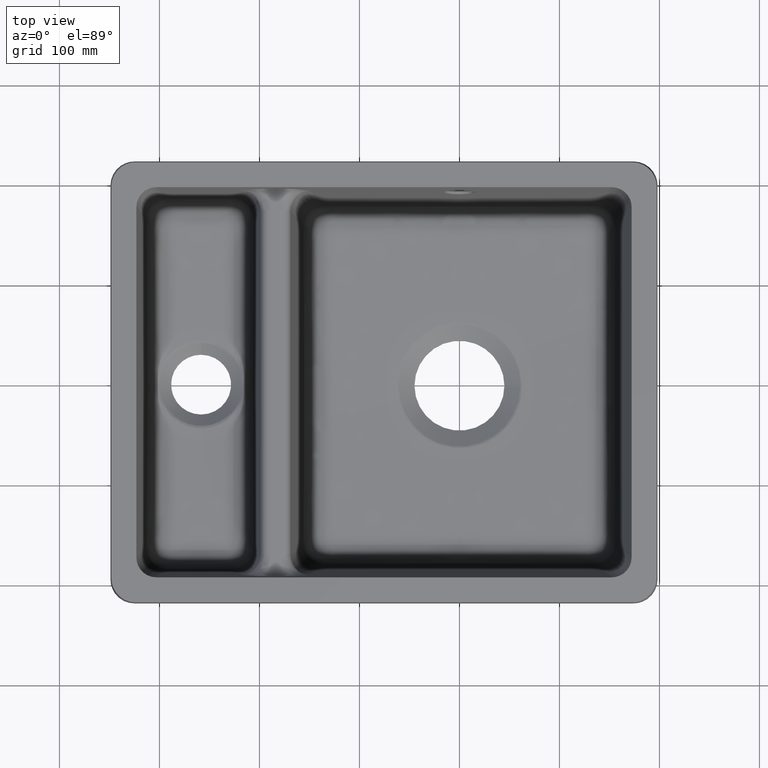
[diagram: clean part render]
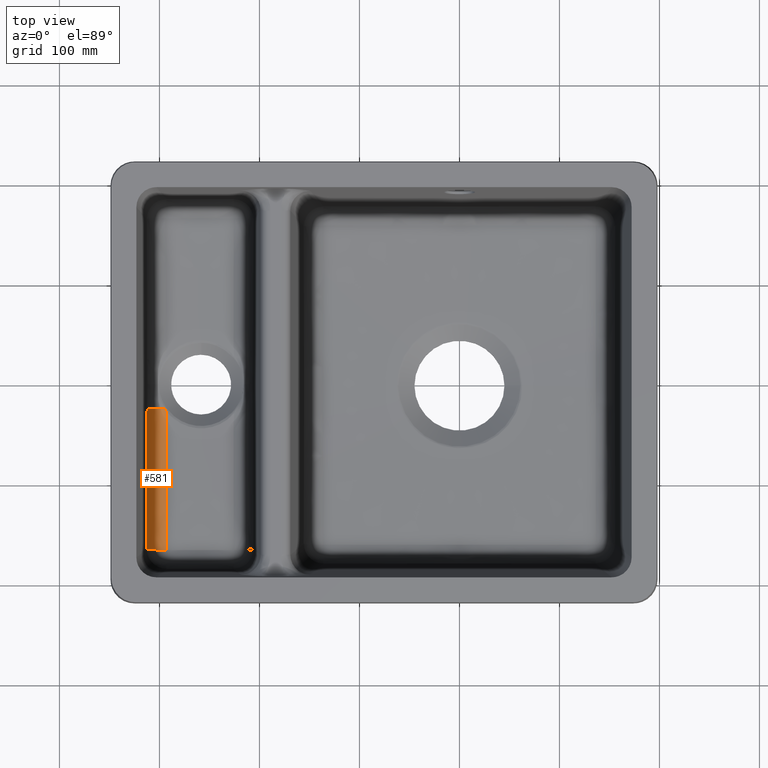
[diagram: same view with one face highlighted and labeled with its STEP entity id]
A machine part, top view. The second image highlights one B-rep face of the part: STEP entity #581.
In plain terms, the highlighted face is a freeform B-spline surface patch.
Its self-contained STEP definition (entity closure, byte-faithful):
#125=(
BOUNDED_SURFACE()
B_SPLINE_SURFACE(3,2,((#7878,#7879,#7880),(#7881,#7882,#7883),(#7884,#7885,
#7886),(#7887,#7888,#7889),(#7890,#7891,#7892),(#7893,#7894,#7895),(#7896,
#7897,#7898),(#7899,#7900,#7901)),.UNSPECIFIED.,.F.,.F.,.F.)
B_SPLINE_SURFACE_WITH_KNOTS((4,2,2,4),(3,3),(0.,0.5,0.75,1.),(0.,1.),
 .UNSPECIFIED.)
GEOMETRIC_REPRESENTATION_ITEM()
RATIONAL_B_SPLINE_SURFACE(((1.,0.746104005475301,1.),(1.,0.746527538970767,
1.),(1.,0.747001951568925,1.),(1.,0.748608014456038,1.),(1.,0.749291800073389,
1.),(1.,0.751415621870391,1.),(1.,0.752931310722518,1.),(1.,0.754912663048427,
1.)))
REPRESENTATION_ITEM('')
SURFACE()
);
#288=FACE_OUTER_BOUND('',#853,.T.);
#447=CIRCLE('',#3088,19.9999999999992);
#581=ADVANCED_FACE('',(#288),#125,.T.);
#853=EDGE_LOOP('',(#1658,#1659,#1660,#1661,#1662));
#1046=B_SPLINE_CURVE_WITH_KNOTS('',3,(#7591,#7592,#7593,#7594,#7595,#7596,
#7597,#7598,#7599,#7600,#7601,#7602),.UNSPECIFIED.,.F.,.F.,(4,2,2,2,2,4),
(0.,0.0625000000000044,0.125000000000009,0.250000000000018,0.5,1.),
 .UNSPECIFIED.);
#1052=B_SPLINE_CURVE_WITH_KNOTS('',3,(#7663,#7664,#7665,#7666,#7667,#7668,
#7669,#7670,#7671,#7672,#7673,#7674,#7675,#7676,#7677,#7678,#7679,#7680,
#7681,#7682,#7683,#7684,#7685,#7686,#7687,#7688,#7689,#7690,#7691,#7692,
#7693,#7694,#7695,#7696,#7697,#7698,#7699,#7700,#7701,#7702,#7703,#7704,
#7705,#7706,#7707,#7708,#7709,#7710,#7711,#7712,#7713,#7714,#7715,#7716,
#7717,#7718,#7719,#7720,#7721,#7722,#7723),.UNSPECIFIED.,.F.,.F.,(4,2,2,
2,2,2,2,2,2,2,2,2,2,2,2,2,2,2,2,2,2,2,2,2,2,2,2,1,2,2,4),(0.,0.0156249999999978,
0.0234374999999966,0.0312499999999955,0.0468749999999933,0.0624999999999911,
0.0781249999999889,0.0937499999999867,0.109374999999984,0.124999999999982,
0.156249999999978,0.171874999999975,0.187499999999973,0.218749999999968,
0.234374999999962,0.249999999999957,0.312499999999941,0.343749999999934,
0.359374999999933,0.374999999999931,0.437499999999939,0.46874999999994,
0.484374999999943,0.499999999999946,0.624999999999956,0.687499999999962,
0.718749999999964,0.734374999999965,0.742187499999966,0.749999999999967,
1.),.UNSPECIFIED.);
#1054=B_SPLINE_CURVE_WITH_KNOTS('',3,(#7789,#7790,#7791,#7792,#7793,#7794,
#7795,#7796,#7797,#7798,#7799,#7800,#7801,#7802,#7803,#7804,#7805,#7806,
#7807,#7808,#7809,#7810,#7811,#7812,#7813,#7814,#7815,#7816,#7817,#7818,
#7819,#7820,#7821),.UNSPECIFIED.,.F.,.F.,(4,2,2,2,2,1,1,2,2,2,2,2,1,1,1,
2,2,2,4),(0.,0.125000000000011,0.187500000000016,0.218750000000019,0.23437500000002,
0.242187500000021,0.246093750000021,0.248046875000021,0.250000000000021,
0.375000000000028,0.437500000000031,0.468750000000033,0.484375000000033,
0.492187500000034,0.496093750000034,0.498046875000034,0.500000000000034,
0.750000000000017,1.),.UNSPECIFIED.);
#1055=B_SPLINE_CURVE_WITH_KNOTS('',3,(#7824,#7825,#7826,#7827,#7828,#7829,
#7830,#7831,#7832,#7833,#7834,#7835,#7836,#7837,#7838,#7839,#7840,#7841,
#7842,#7843,#7844,#7845,#7846,#7847,#7848,#7849,#7850,#7851,#7852,#7853,
#7854,#7855,#7856,#7857,#7858,#7859,#7860,#7861,#7862,#7863,#7864,#7865,
#7866,#7867,#7868,#7869,#7870,#7871,#7872,#7873,#7874,#7875,#7876,#7877),
 .UNSPECIFIED.,.F.,.F.,(4,1,1,1,1,1,2,2,1,1,1,1,1,1,2,2,1,1,1,1,2,2,1,1,
1,1,2,2,1,1,1,1,2,2,1,1,1,2,2,4),(0.,0.12500000000001,0.187500000000016,
0.218750000000019,0.23437500000002,0.24218750000002,0.24609375000002,0.25000000000002,
0.375000000000019,0.437500000000018,0.468750000000018,0.484375000000018,
0.492187500000018,0.496093750000018,0.498046875000018,0.500000000000018,
0.531250000000017,0.546875000000016,0.554687500000016,0.558593750000016,
0.560546875000015,0.562500000000015,0.593750000000015,0.609375000000015,
0.617187500000015,0.621093750000015,0.623046875000014,0.625000000000014,
0.687500000000013,0.718750000000012,0.734375000000012,0.742187500000012,
0.746093750000012,0.750000000000012,0.812500000000009,0.843750000000007,
0.859375000000006,0.867187500000006,0.875000000000006,1.),.UNSPECIFIED.);
#1658=ORIENTED_EDGE('',*,*,#2585,.F.);
#1659=ORIENTED_EDGE('',*,*,#2575,.T.);
#1660=ORIENTED_EDGE('',*,*,#2586,.T.);
#1661=ORIENTED_EDGE('',*,*,#2587,.F.);
#1662=ORIENTED_EDGE('',*,*,#2581,.F.);
#2208=VERTEX_POINT('',#7484);
#2211=VERTEX_POINT('',#7526);
#2214=VERTEX_POINT('',#7635);
#2216=VERTEX_POINT('',#7724);
#2218=VERTEX_POINT('',#7823);
#2575=EDGE_CURVE('',#2211,#2208,#1046,.T.);
#2581=EDGE_CURVE('',#2214,#2216,#1052,.T.);
#2585=EDGE_CURVE('',#2211,#2214,#1054,.T.);
#2586=EDGE_CURVE('',#2208,#2218,#447,.T.);
#2587=EDGE_CURVE('',#2216,#2218,#1055,.T.);
#3088=AXIS2_PLACEMENT_3D('',#7822,#3608,#3609);
#3608=DIRECTION('',(0.00266789837881062,0.999674230677222,-0.0253833575033934));
#3609=DIRECTION('',(0.,0.025383447839206,0.999677788377733));
#7484=CARTESIAN_POINT('',(-294.614486643253,-24.7179464307268,-120.028523984698));
#7526=CARTESIAN_POINT('',(-293.11186946766,-27.0577078308736,-120.076575875401));
#7591=CARTESIAN_POINT('',(-293.112043554677,-27.0577121708611,-120.076756417479));
#7592=CARTESIAN_POINT('',(-293.112045420168,-27.0574346108325,-120.076763755321));
#7593=CARTESIAN_POINT('',(-293.175092334555,-26.9604266979551,-120.077100518656));
#7594=CARTESIAN_POINT('',(-293.238032358091,-26.8634597566826,-120.077208524835));
#7595=CARTESIAN_POINT('',(-293.269764771186,-26.8145359317293,-120.077185814916));
#7596=CARTESIAN_POINT('',(-293.363931205429,-26.6692468039538,-120.076890446204));
#7597=CARTESIAN_POINT('',(-293.42762127888,-26.5708332663541,-120.076380269229));
#7598=CARTESIAN_POINT('',(-293.614888306543,-26.2810368951327,-120.073976307663));
#7599=CARTESIAN_POINT('',(-293.743234001911,-26.0818187651981,-120.071072591969));
#7600=CARTESIAN_POINT('',(-294.113351948149,-25.5055583800813,-120.059145704722));
#7601=CARTESIAN_POINT('',(-294.362718553959,-25.1149649587738,-120.046398802244));
#7602=CARTESIAN_POINT('',(-294.614486731181,-24.7179464302455,-120.028523974988));
#7635=CARTESIAN_POINT('',(-293.178436984624,-165.904003299702,-114.598552431371));
#7663=CARTESIAN_POINT('',(-293.178436984624,-165.904003299702,-114.598552431371));
#7664=CARTESIAN_POINT('',(-293.314494884045,-165.903356555184,-114.597359486233));
#7665=CARTESIAN_POINT('',(-293.448328554223,-165.902641847214,-114.594917636681));
#7666=CARTESIAN_POINT('',(-293.670888709215,-165.901850384969,-114.588293226004));
#7667=CARTESIAN_POINT('',(-293.74847030762,-165.901452463245,-114.585579862308));
#7668=CARTESIAN_POINT('',(-293.912095136497,-165.900193116763,-114.578822070729));
#7669=CARTESIAN_POINT('',(-294.028015377867,-165.899102429889,-114.573153992517));
#7670=CARTESIAN_POINT('',(-294.209909761616,-165.89784874697,-114.563275272421));
#7671=CARTESIAN_POINT('',(-294.34574775076,-165.897615073214,-114.554782391739));
#7672=CARTESIAN_POINT('',(-294.648263035517,-165.895310837444,-114.532140321839));
#7673=CARTESIAN_POINT('',(-294.869519733041,-165.892726307697,-114.512521188136));
#7674=CARTESIAN_POINT('',(-295.123676026935,-165.890486974115,-114.487082853851));
#7675=CARTESIAN_POINT('',(-295.262555028833,-165.889402892481,-114.471957584911));
#7676=CARTESIAN_POINT('',(-295.563900002479,-165.886489674113,-114.435407118279));
#7677=CARTESIAN_POINT('',(-295.768929892991,-165.884200335939,-114.407754130508));
#7678=CARTESIAN_POINT('',(-296.031885350587,-165.881368245081,-114.36928685492));
#7679=CARTESIAN_POINT('',(-296.172516196811,-165.879860784225,-114.347381068779));
#7680=CARTESIAN_POINT('',(-296.471875744839,-165.876364397547,-114.297043654215));
#7681=CARTESIAN_POINT('',(-296.676648000208,-165.873787525139,-114.259720315126));
#7682=CARTESIAN_POINT('',(-297.041310495675,-165.869132277934,-114.189301043898));
#7683=CARTESIAN_POINT('',(-297.311023043019,-165.8657705402,-114.132585486346));
#7684=CARTESIAN_POINT('',(-297.754148164658,-165.859301237779,-114.027863336172));
#7685=CARTESIAN_POINT('',(-297.908273666902,-165.856923858907,-113.989670995102));
#7686=CARTESIAN_POINT('',(-298.229023756122,-165.851756284355,-113.905767012544));
#7687=CARTESIAN_POINT('',(-298.442375182817,-165.848177322876,-113.84652912947));
#7688=CARTESIAN_POINT('',(-298.820198468794,-165.84179916722,-113.73715971419));
#7689=CARTESIAN_POINT('',(-299.090511682122,-165.837086466495,-113.653574561606));
#7690=CARTESIAN_POINT('',(-299.522100710746,-165.828944245401,-113.508544612649));
#7691=CARTESIAN_POINT('',(-299.670311538643,-165.82605597047,-113.45692122124));
#7692=CARTESIAN_POINT('',(-299.975104688057,-165.819923076224,-113.34645421743));
#7693=CARTESIAN_POINT('',(-300.17846654552,-165.815685583481,-113.269316075007));
#7694=CARTESIAN_POINT('',(-300.747472212353,-165.803608515926,-113.046790181274));
#7695=CARTESIAN_POINT('',(-301.251476674903,-165.792421578695,-112.830702068893));
#7696=CARTESIAN_POINT('',(-302.069378864799,-165.771632128332,-112.43059906117));
#7697=CARTESIAN_POINT('',(-302.35227598158,-165.764053486156,-112.284539664018));
#7698=CARTESIAN_POINT('',(-302.790064713422,-165.751671641082,-112.043845290968));
#7699=CARTESIAN_POINT('',(-302.938230719551,-165.747376592384,-111.960011833466));
#7700=CARTESIAN_POINT('',(-303.238658692707,-165.738458639322,-111.784702745701));
#7701=CARTESIAN_POINT('',(-303.434462668967,-165.732485645641,-111.666238421789));
#7702=CARTESIAN_POINT('',(-303.987268613459,-165.715344927877,-111.323592714281));
#7703=CARTESIAN_POINT('',(-304.455818823229,-165.699891338568,-111.009420860257));
#7704=CARTESIAN_POINT('',(-305.186330280183,-165.673372825335,-110.466165115131));
#7705=CARTESIAN_POINT('',(-305.434411466875,-165.66398258431,-110.273075631819));
#7706=CARTESIAN_POINT('',(-305.811569330437,-165.649032445107,-109.963947291946));
#7707=CARTESIAN_POINT('',(-305.938125338326,-165.64390530647,-109.857655737816));
#7708=CARTESIAN_POINT('',(-306.192573326131,-165.63336156111,-109.638332163376));
#7709=CARTESIAN_POINT('',(-306.36083523707,-165.626196324796,-109.488659290539));
#7710=CARTESIAN_POINT('',(-307.152926181561,-165.591886784406,-108.769736644875));
#7711=CARTESIAN_POINT('',(-307.910630363229,-165.555706840389,-107.991741348382));
#7712=CARTESIAN_POINT('',(-309.042900264554,-165.489665552402,-106.566429750773));
#7713=CARTESIAN_POINT('',(-309.419237466946,-165.465722857297,-106.048342115632));
#7714=CARTESIAN_POINT('',(-309.967999692366,-165.426869623786,-105.202045827512));
#7715=CARTESIAN_POINT('',(-310.148271088839,-165.413431529355,-104.908435403876));
#7716=CARTESIAN_POINT('',(-310.412712314206,-165.392565734765,-104.450343406642));
#7717=CARTESIAN_POINT('',(-310.543439100884,-165.381955977566,-104.216880449442));
#7718=CARTESIAN_POINT('',(-310.671530628708,-165.371087860389,-103.976736449614));
#7719=CARTESIAN_POINT('',(-310.756294103533,-165.363786007968,-103.815151196972));
#7720=CARTESIAN_POINT('',(-310.814561844477,-165.358667623845,-103.701666254586));
#7721=CARTESIAN_POINT('',(-311.656944668952,-165.283835635971,-102.040565250747));
#7722=CARTESIAN_POINT('',(-312.571122276393,-165.181268471018,-99.7385079655499));
#7723=CARTESIAN_POINT('',(-312.889624969351,-165.050229414598,-96.7081572650869));
#7724=CARTESIAN_POINT('',(-312.889624969351,-165.050229414598,-96.7081572650869));
#7789=CARTESIAN_POINT('',(-293.111869467661,-27.0577078308736,-120.076575875401));
#7790=CARTESIAN_POINT('',(-293.079930757639,-31.7162990980656,-119.9527491934));
#7791=CARTESIAN_POINT('',(-293.091275360381,-36.8829237434324,-119.793449526508));
#7792=CARTESIAN_POINT('',(-293.056960997458,-45.5391778414894,-119.501290548834));
#7793=CARTESIAN_POINT('',(-293.039014752272,-48.5735397132276,-119.39503597672));
#7794=CARTESIAN_POINT('',(-293.010211036715,-53.3533532645934,-119.222351749215));
#7795=CARTESIAN_POINT('',(-293.000470843587,-54.9846096399037,-119.162573278491));
#7796=CARTESIAN_POINT('',(-292.98825211294,-57.4886673366233,-119.069579980071));
#7797=CARTESIAN_POINT('',(-292.984589209756,-58.3328799108964,-119.038027948542));
#7798=CARTESIAN_POINT('',(-292.98013814275,-59.6134963292064,-118.989868503166));
#7799=CARTESIAN_POINT('',(-292.978174511305,-60.2573787737025,-118.965580930957));
#7800=CARTESIAN_POINT('',(-292.976447050878,-61.0148300110519,-118.936881693385));
#7801=CARTESIAN_POINT('',(-292.975839441902,-61.3407922650348,-118.924504076569));
#7802=CARTESIAN_POINT('',(-292.975465217495,-61.5583982675113,-118.916235011232));
#7803=CARTESIAN_POINT('',(-292.975245151387,-61.7012739982752,-118.910800840808));
#7804=CARTESIAN_POINT('',(-292.968276880756,-66.5877800193264,-118.724843894095));
#7805=CARTESIAN_POINT('',(-292.976345275121,-71.8795235138219,-118.517967605667));
#7806=CARTESIAN_POINT('',(-292.979109653722,-80.5547978435702,-118.171982846299));
#7807=CARTESIAN_POINT('',(-292.979131709588,-83.5692397800833,-118.050709538721));
#7808=CARTESIAN_POINT('',(-292.979852426618,-88.2753727455573,-117.859881995673));
#7809=CARTESIAN_POINT('',(-292.980249376387,-89.8748204717321,-117.794786551043));
#7810=CARTESIAN_POINT('',(-292.981713462934,-92.320092316994,-117.694913988678));
#7811=CARTESIAN_POINT('',(-292.982666619359,-93.5542527866399,-117.644420358641));
#7812=CARTESIAN_POINT('',(-292.984345847878,-95.0142687081886,-117.5845357631));
#7813=CARTESIAN_POINT('',(-292.985352902692,-95.7493161278522,-117.554349625206));
#7814=CARTESIAN_POINT('',(-292.985823198202,-96.0654162164264,-117.54136045751));
#7815=CARTESIAN_POINT('',(-292.986145650453,-96.2763895428683,-117.532689400946));
#7816=CARTESIAN_POINT('',(-292.98637024809,-96.418567337745,-117.52684437746));
#7817=CARTESIAN_POINT('',(-293.00074080023,-105.339617238689,-117.160039297715));
#7818=CARTESIAN_POINT('',(-293.056794393002,-115.541799019332,-116.734271108303));
#7819=CARTESIAN_POINT('',(-293.120721354314,-138.678146298758,-115.759121609684));
#7820=CARTESIAN_POINT('',(-293.128744710384,-151.610739063999,-115.209740300476));
#7821=CARTESIAN_POINT('',(-293.178436984624,-165.904003299702,-114.598552431371));
#7822=CARTESIAN_POINT('',(-292.417091066284,-24.219211563782,-100.155861450181));
#7823=CARTESIAN_POINT('',(-312.307528973452,-24.2192114896577,-102.246430717416));
#7824=CARTESIAN_POINT('',(-312.889624969352,-165.050229414598,-96.708157265087));
#7825=CARTESIAN_POINT('',(-312.857884640401,-157.989410067799,-97.0101463226165));
#7826=CARTESIAN_POINT('',(-312.814393384559,-148.293374861836,-97.4239379812753));
#7827=CARTESIAN_POINT('',(-312.770862251845,-138.547922963122,-97.8381090430155));
#7828=CARTESIAN_POINT('',(-312.750898851931,-134.066844307493,-98.0280481055451));
#7829=CARTESIAN_POINT('',(-312.741367693585,-131.92421680311,-98.1187310197248));
#7830=CARTESIAN_POINT('',(-312.736714749814,-130.877381006777,-98.1630008225433));
#7831=CARTESIAN_POINT('',(-312.734744767213,-130.433982370318,-98.1817439549789));
#7832=CARTESIAN_POINT('',(-312.733436809069,-130.139548896291,-98.1941883454468));
#7833=CARTESIAN_POINT('',(-312.733025748933,-130.047010043129,-98.1980993213998));
#7834=CARTESIAN_POINT('',(-312.703693612443,-123.442185593392,-98.4771759581827));
#7835=CARTESIAN_POINT('',(-312.66305895534,-114.238100591003,-98.863788895331));
#7836=CARTESIAN_POINT('',(-312.619204825613,-104.205133084879,-99.2810330683846));
#7837=CARTESIAN_POINT('',(-312.598166003305,-99.3649322476502,-99.4812040915065));
#7838=CARTESIAN_POINT('',(-312.58786865279,-96.9889025579938,-99.5791768372163));
#7839=CARTESIAN_POINT('',(-312.582775492693,-95.8119053954052,-99.6276350186083));
#7840=CARTESIAN_POINT('',(-312.580242791434,-95.2261612346706,-99.6517320614387));
#7841=CARTESIAN_POINT('',(-312.579160322064,-94.9757182559045,-99.6620310695375));
#7842=CARTESIAN_POINT('',(-312.578439336711,-94.8088874329441,-99.6688907869433));
#7843=CARTESIAN_POINT('',(-312.57788168545,-94.67982811708,-99.6741964842834));
#7844=CARTESIAN_POINT('',(-312.575121858727,-94.0410571499809,-99.7004544815605));
#7845=CARTESIAN_POINT('',(-312.568404586121,-92.4899921962003,-99.7643650612653));
#7846=CARTESIAN_POINT('',(-312.555630936457,-89.544192784036,-99.8858982195824));
#7847=CARTESIAN_POINT('',(-312.548009903719,-87.7872371697654,-99.958407502573));
#7848=CARTESIAN_POINT('',(-312.543890835373,-86.8377453855831,-99.9975978200264));
#7849=CARTESIAN_POINT('',(-312.542059402087,-86.4156030544234,-100.015022743783));
#7850=CARTESIAN_POINT('',(-312.540823753612,-86.1307932156956,-100.026779153714));
#7851=CARTESIAN_POINT('',(-312.540056171666,-85.9538736513032,-100.034082208098));
#7852=CARTESIAN_POINT('',(-312.531724370412,-84.03350772976,-100.113354001782));
#7853=CARTESIAN_POINT('',(-312.521089290239,-81.577782123343,-100.214540030553));
#7854=CARTESIAN_POINT('',(-312.510654756555,-79.159682557851,-100.313817986932));
#7855=CARTESIAN_POINT('',(-312.505930754676,-78.0623611856037,-100.358763862492));
#7856=CARTESIAN_POINT('',(-312.503692069977,-77.5416326021048,-100.380063524615));
#7857=CARTESIAN_POINT('',(-312.502759058586,-77.324448659739,-100.388940535026));
#7858=CARTESIAN_POINT('',(-312.502142923194,-77.1809894649535,-100.394802671698));
#7859=CARTESIAN_POINT('',(-312.501988280103,-77.1449827369579,-100.396274002425));
#7860=CARTESIAN_POINT('',(-312.487049708166,-73.6648912890813,-100.538405020262));
#7861=CARTESIAN_POINT('',(-312.467005845794,-68.9334540726148,-100.729109631942));
#7862=CARTESIAN_POINT('',(-312.446570036382,-63.9918434525157,-100.923543370606));
#7863=CARTESIAN_POINT('',(-312.437089305848,-61.6656380089107,-101.013746496196));
#7864=CARTESIAN_POINT('',(-312.432533234124,-60.5386852537194,-101.057094623056));
#7865=CARTESIAN_POINT('',(-312.43062012343,-60.0634519229112,-101.075296655439));
#7866=CARTESIAN_POINT('',(-312.429353492184,-59.7483511293539,-101.087347846745));
#7867=CARTESIAN_POINT('',(-312.4288930361,-59.6336968104484,-101.09172879374));
#7868=CARTESIAN_POINT('',(-312.415411843354,-56.270003129396,-101.219993774811));
#7869=CARTESIAN_POINT('',(-312.397624019211,-51.6948507478377,-101.389233616548));
#7870=CARTESIAN_POINT('',(-312.379049341661,-46.6609583371672,-101.565959868381));
#7871=CARTESIAN_POINT('',(-312.370306448873,-44.2199584737855,-101.649142936749));
#7872=CARTESIAN_POINT('',(-312.366676161818,-43.1900898913262,-101.68368281086));
#7873=CARTESIAN_POINT('',(-312.364281896448,-42.5071273288273,-101.706462724194));
#7874=CARTESIAN_POINT('',(-312.363266287392,-42.2160799566927,-101.716125598897));
#7875=CARTESIAN_POINT('',(-312.340490243033,-35.645742278587,-101.932825185755));
#7876=CARTESIAN_POINT('',(-312.322357727491,-29.7756162734599,-102.105344547088));
#7877=CARTESIAN_POINT('',(-312.307528973453,-24.2192114896577,-102.246430717416));
#7878=CARTESIAN_POINT('',(-293.178436984624,-165.904003299702,-114.598552431371));
#7879=CARTESIAN_POINT('',(-311.025706396188,-165.817085958518,-114.442157883152));
#7880=CARTESIAN_POINT('',(-312.889624969351,-165.050229414598,-96.7081572650869));
#7881=CARTESIAN_POINT('',(-293.096823226992,-142.428987859447,-115.602357050696));
#7882=CARTESIAN_POINT('',(-310.922484873767,-142.355237269441,-115.424244980063));
#7883=CARTESIAN_POINT('',(-312.784126676702,-141.581525419494,-97.7119064706483));
#7884=CARTESIAN_POINT('',(-293.021814073219,-118.95606924361,-116.601339040682));
#7885=CARTESIAN_POINT('',(-310.820361000515,-118.901992135649,-116.395888834035));
#7886=CARTESIAN_POINT('',(-312.679123614346,-118.112618378593,-98.7109438747195));
#7887=CARTESIAN_POINT('',(-292.966353236109,-83.715454405482,-118.048534837623));
#7888=CARTESIAN_POINT('',(-310.67705176045,-83.6366931105569,-117.759385147517));
#7889=CARTESIAN_POINT('',(-312.527017206879,-82.9070708421682,-100.158139671178));
#7890=CARTESIAN_POINT('',(-292.957652707802,-71.9646477111891,-118.522940721657));
#7891=CARTESIAN_POINT('',(-310.630998673596,-71.8944491947188,-118.197550999369));
#7892=CARTESIAN_POINT('',(-312.477155139197,-71.1715933301467,-100.632545555551));
#7893=CARTESIAN_POINT('',(-292.992261879193,-48.4177872827394,-119.413318570991));
#7894=CARTESIAN_POINT('',(-310.549078019475,-48.3519963037638,-118.976973977834));
#7895=CARTESIAN_POINT('',(-312.383572656282,-47.6984817238816,-101.522923404528));
#7896=CARTESIAN_POINT('',(-293.043993421444,-36.6252492850084,-119.838774960128));
#7897=CARTESIAN_POINT('',(-310.513082726655,-36.5774448565243,-119.319446284661));
#7898=CARTESIAN_POINT('',(-312.33886543405,-35.9611325581578,-101.948284210584));
#7899=CARTESIAN_POINT('',(-293.12813186859,-24.7246631281218,-120.1368258837));
#7900=CARTESIAN_POINT('',(-310.491952533651,-24.662673265992,-119.520486660187));
#7901=CARTESIAN_POINT('',(-312.307528973452,-24.2192114896578,-102.246430717416));